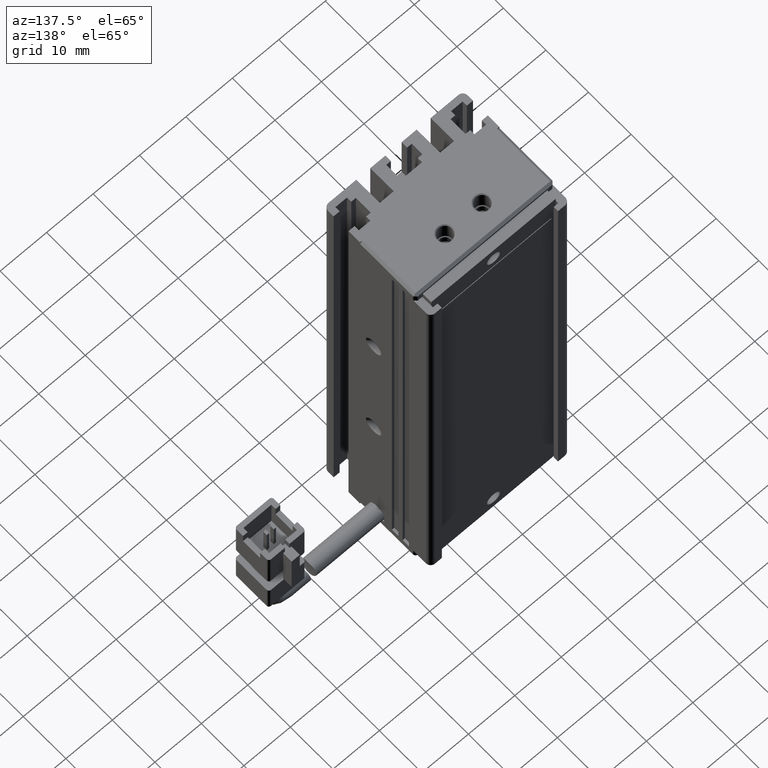
[diagram: clean part render]
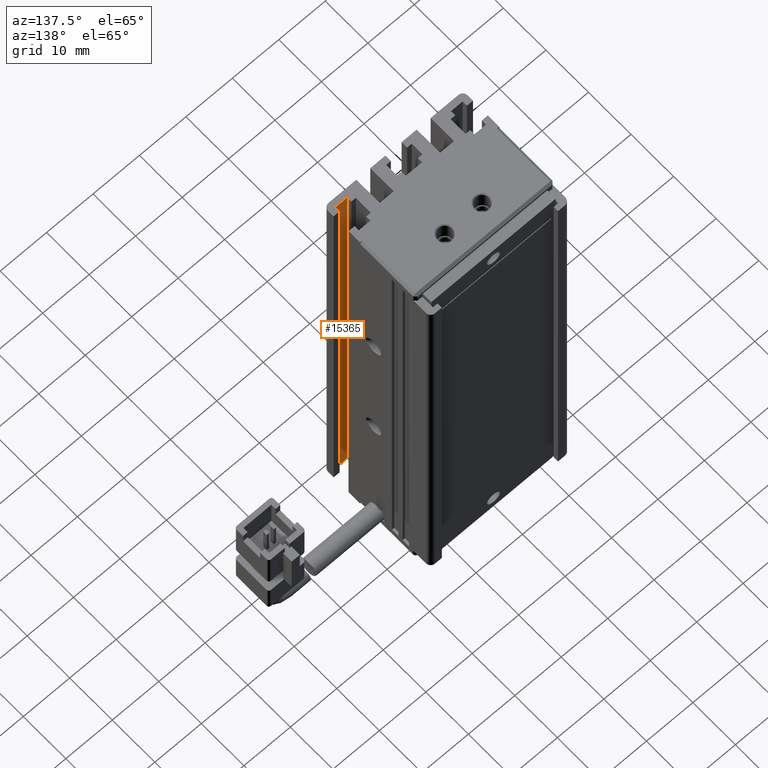
[diagram: same view with one face highlighted and labeled with its STEP entity id]
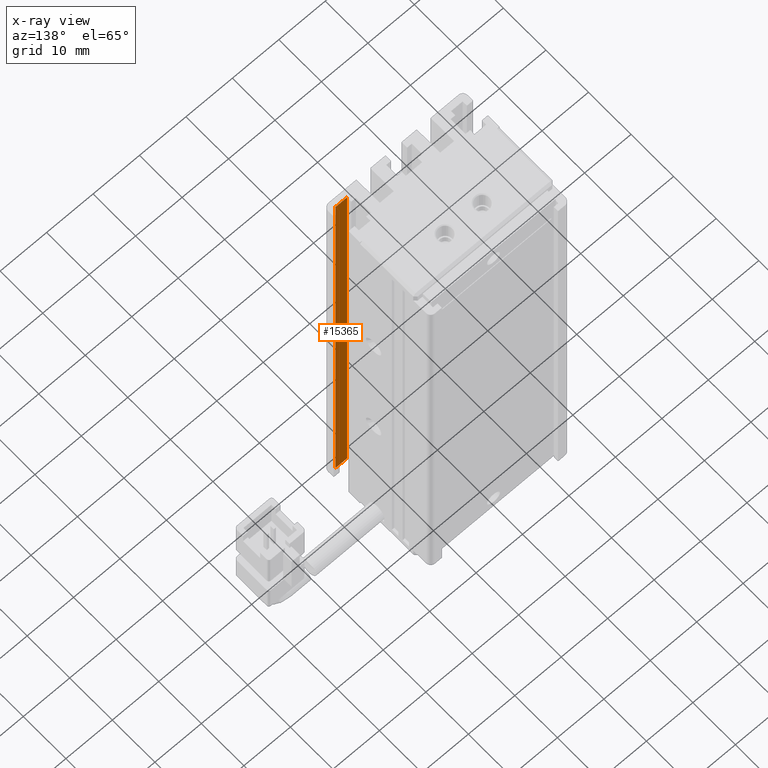
[diagram: x-ray of the same camera — body ghosted, the highlighted face saturated]
A machine part, auxiliary view. The second image highlights one B-rep face of the part: STEP entity #15365.
The next image is the same camera in x-ray: the body ghosted, the highlighted face saturated — about 0% of this face is hidden behind the body in this view.
In plain terms, the highlighted planar face has unit normal (0, 1, 0).
Its self-contained STEP definition (entity closure, byte-faithful):
#499 = DIRECTION ( 'NONE',  ( -1.000000000000000000, -0.0000000000000000000, -0.0000000000000000000 ) ) ;
#849 = VERTEX_POINT ( 'NONE', #8193 ) ;
#1015 = DIRECTION ( 'NONE',  ( -0.0000000000000000000, 0.0000000000000000000, -1.000000000000000000 ) ) ;
#1441 = CARTESIAN_POINT ( 'NONE',  ( 52.12537974683542100, 11.99594479660386900, -66.00000000000000000 ) ) ;
#2026 = CARTESIAN_POINT ( 'NONE',  ( 40.92537974683542500, 11.99594479660386900, -66.00000000000000000 ) ) ;
#2236 = EDGE_CURVE ( 'NONE', #849, #16402, #23237, .T. ) ;
#3859 = DIRECTION ( 'NONE',  ( 0.0000000000000000000, -0.0000000000000000000, 1.000000000000000000 ) ) ;
#4819 = VECTOR ( 'NONE', #1015, 1000.000000000000000 ) ;
#5603 = EDGE_LOOP ( 'NONE', ( #19078, #27544, #6438, #27747 ) ) ;
#5782 = CARTESIAN_POINT ( 'NONE',  ( 52.12537974683542100, 11.99594479660386900, -164.0000000000000000 ) ) ;
#6438 = ORIENTED_EDGE ( 'NONE', *, *, #20980, .T. ) ;
#6615 = DIRECTION ( 'NONE',  ( 0.0000000000000000000, 1.000000000000000000, 0.0000000000000000000 ) ) ;
#8193 = CARTESIAN_POINT ( 'NONE',  ( 54.62537974683542800, 11.99594479660386900, -66.00000000000000000 ) ) ;
#11768 = EDGE_CURVE ( 'NONE', #29773, #24343, #19319, .T. ) ;
#12881 = VECTOR ( 'NONE', #3859, 1000.000000000000000 ) ;
#13015 = CARTESIAN_POINT ( 'NONE',  ( 54.62537974683542800, 11.99594479660386900, -164.0000000000000000 ) ) ;
#15112 = AXIS2_PLACEMENT_3D ( 'NONE', #21046, #6615, #23445 ) ;
#15365 = ADVANCED_FACE ( 'NONE', ( #22222 ), #20937, .T. ) ;
#15380 = CARTESIAN_POINT ( 'NONE',  ( 54.62537974683542100, 11.99594479660386900, -66.00000000000000000 ) ) ;
#16402 = VERTEX_POINT ( 'NONE', #13015 ) ;
#19078 = ORIENTED_EDGE ( 'NONE', *, *, #27223, .F. ) ;
#19295 = VECTOR ( 'NONE', #28522, 1000.000000000000000 ) ;
#19319 = LINE ( 'NONE', #1441, #12881 ) ;
#19957 = CARTESIAN_POINT ( 'NONE',  ( 52.12537974683542100, 11.99594479660386900, -66.00000000000000000 ) ) ;
#20937 = PLANE ( 'NONE',  #15112 ) ;
#20980 = EDGE_CURVE ( 'NONE', #16402, #29773, #22729, .T. ) ;
#21046 = CARTESIAN_POINT ( 'NONE',  ( 40.92537974683542500, 11.99594479660386900, -66.00000000000000000 ) ) ;
#22222 = FACE_OUTER_BOUND ( 'NONE', #5603, .T. ) ;
#22729 = LINE ( 'NONE', #29316, #29147 ) ;
#23237 = LINE ( 'NONE', #15380, #4819 ) ;
#23445 = DIRECTION ( 'NONE',  ( 0.0000000000000000000, -0.0000000000000000000, 1.000000000000000000 ) ) ;
#24343 = VERTEX_POINT ( 'NONE', #19957 ) ;
#26476 = LINE ( 'NONE', #2026, #19295 ) ;
#27223 = EDGE_CURVE ( 'NONE', #849, #24343, #26476, .T. ) ;
#27544 = ORIENTED_EDGE ( 'NONE', *, *, #2236, .T. ) ;
#27747 = ORIENTED_EDGE ( 'NONE', *, *, #11768, .T. ) ;
#28522 = DIRECTION ( 'NONE',  ( -1.000000000000000000, -0.0000000000000000000, -0.0000000000000000000 ) ) ;
#29147 = VECTOR ( 'NONE', #499, 1000.000000000000000 ) ;
#29316 = CARTESIAN_POINT ( 'NONE',  ( 40.92537974683542500, 11.99594479660386900, -164.0000000000000000 ) ) ;
#29773 = VERTEX_POINT ( 'NONE', #5782 ) ;